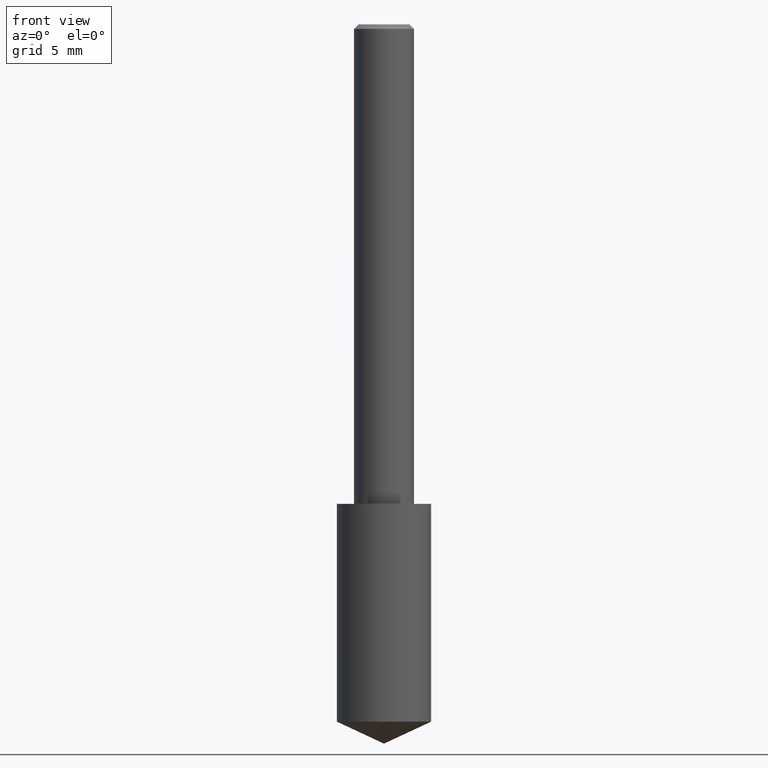
[diagram: clean part render]
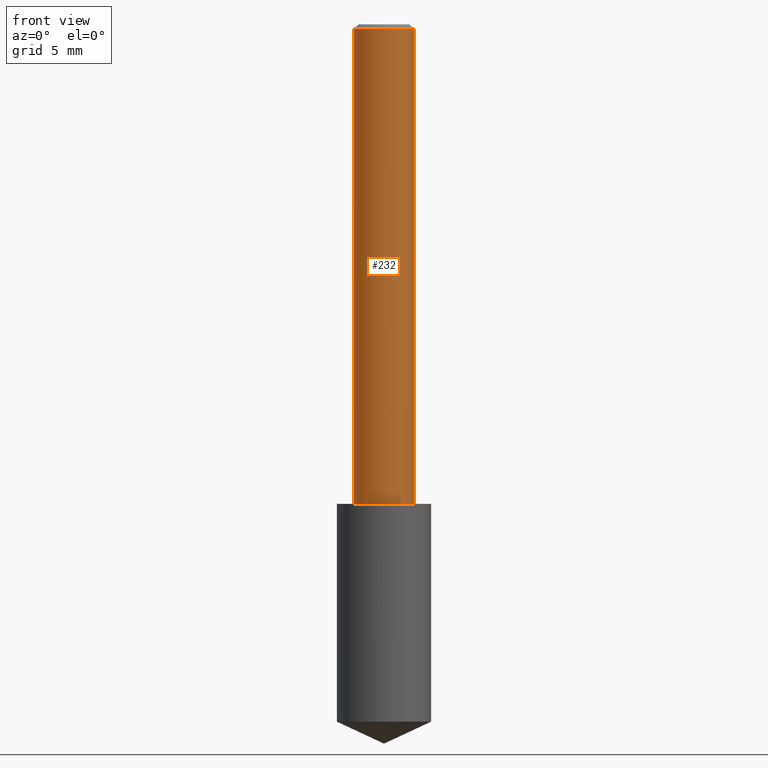
[diagram: same view with one face highlighted and labeled with its STEP entity id]
A machine part, front view. The second image highlights one B-rep face of the part: STEP entity #232.
In plain terms, the highlighted cylindrical surface (edge-blend (fillet) strip) has radius 1.5875 mm, axis along (-0, 0, 1).
Its self-contained STEP definition (entity closure, byte-faithful):
#3 = ORIENTED_EDGE ( 'NONE', *, *, #267, .T. ) ;
#9 = LINE ( 'NONE', #208, #48 ) ;
#15 = ORIENTED_EDGE ( 'NONE', *, *, #292, .F. ) ;
#20 = CIRCLE ( 'NONE', #239, 0.06250000000000012490 ) ;
#30 = CIRCLE ( 'NONE', #206, 0.06250000000000000000 ) ;
#31 = VERTEX_POINT ( 'NONE', #107 ) ;
#48 = VECTOR ( 'NONE', #324, 39.37007874015748143 ) ;
#53 = CARTESIAN_POINT ( 'NONE',  ( 0.000000000000000000, 0.000000000000000000, 0.000000000000000000 ) ) ;
#71 = VECTOR ( 'NONE', #338, 39.37007874015748143 ) ;
#106 = CARTESIAN_POINT ( 'NONE',  ( -0.06250000000000006939, 4.440892098500631092E-16, -3.074334431409319267E-30 ) ) ;
#107 = CARTESIAN_POINT ( 'NONE',  ( -0.06250000000000000000, -1.318017778347336672E-15, -0.009375000000000069042 ) ) ;
#119 = ORIENTED_EDGE ( 'NONE', *, *, #122, .F. ) ;
#122 = EDGE_CURVE ( 'NONE', #272, #31, #180, .T. ) ;
#133 = FACE_OUTER_BOUND ( 'NONE', #181, .T. ) ;
#151 = VERTEX_POINT ( 'NONE', #228 ) ;
#154 = DIRECTION ( 'NONE',  ( 1.000000000000000000, -6.982962677686266711E-15, 4.876176775795935793E-29 ) ) ;
#169 = DIRECTION ( 'NONE',  ( 1.000000000000000000, -6.982962677686266711E-15, 0.000000000000000000 ) ) ;
#178 = AXIS2_PLACEMENT_3D ( 'NONE', #53, #286, #154 ) ;
#179 = CYLINDRICAL_SURFACE ( 'NONE', #178, 0.06250000000000006939 ) ;
#180 = LINE ( 'NONE', #106, #71 ) ;
#181 = EDGE_LOOP ( 'NONE', ( #119, #291, #3, #15 ) ) ;
#197 = DIRECTION ( 'NONE',  ( -2.445468806185136597E-29, 3.491481338843145583E-15, 1.000000000000000000 ) ) ;
#206 = AXIS2_PLACEMENT_3D ( 'NONE', #307, #333, #169 ) ;
#208 = CARTESIAN_POINT ( 'NONE',  ( 0.06250000000000006939, -4.364351673553921624E-16, 3.047610484872463374E-30 ) ) ;
#228 = CARTESIAN_POINT ( 'NONE',  ( 0.06250000000000012490, -3.927916506198539224E-15, -1.000000000000000222 ) ) ;
#232 = ADVANCED_FACE ( 'NONE', ( #133 ), #179, .T. ) ;
#234 = CARTESIAN_POINT ( 'NONE',  ( 0.06250000000000000000, -4.691678049070464390E-16, -0.009375000000000069042 ) ) ;
#239 = AXIS2_PLACEMENT_3D ( 'NONE', #271, #197, #302 ) ;
#251 = VERTEX_POINT ( 'NONE', #234 ) ;
#267 = EDGE_CURVE ( 'NONE', #151, #251, #9, .T. ) ;
#271 = CARTESIAN_POINT ( 'NONE',  ( 2.445468806185137438E-29, -3.491481338843146371E-15, -1.000000000000000222 ) ) ;
#272 = VERTEX_POINT ( 'NONE', #328 ) ;
#286 = DIRECTION ( 'NONE',  ( -2.445468806185136597E-29, 3.491481338843145583E-15, 1.000000000000000000 ) ) ;
#291 = ORIENTED_EDGE ( 'NONE', *, *, #297, .T. ) ;
#292 = EDGE_CURVE ( 'NONE', #31, #251, #30, .T. ) ;
#297 = EDGE_CURVE ( 'NONE', #272, #151, #20, .T. ) ;
#302 = DIRECTION ( 'NONE',  ( 1.000000000000000000, -6.982962677686264344E-15, 0.000000000000000000 ) ) ;
#307 = CARTESIAN_POINT ( 'NONE',  ( 2.292627005798582375E-31, -3.273263755165473266E-17, -0.009375000000000069042 ) ) ;
#324 = DIRECTION ( 'NONE',  ( -2.445468806185136877E-29, 3.491481338843145188E-15, 1.000000000000000000 ) ) ;
#328 = CARTESIAN_POINT ( 'NONE',  ( -0.06250000000000012490, -1.318017778347335489E-15, -1.000000000000000222 ) ) ;
#333 = DIRECTION ( 'NONE',  ( -2.445468806185136597E-29, 3.491481338843145583E-15, 1.000000000000000000 ) ) ;
#338 = DIRECTION ( 'NONE',  ( -2.445468806185136877E-29, 3.491481338843145188E-15, 1.000000000000000000 ) ) ;